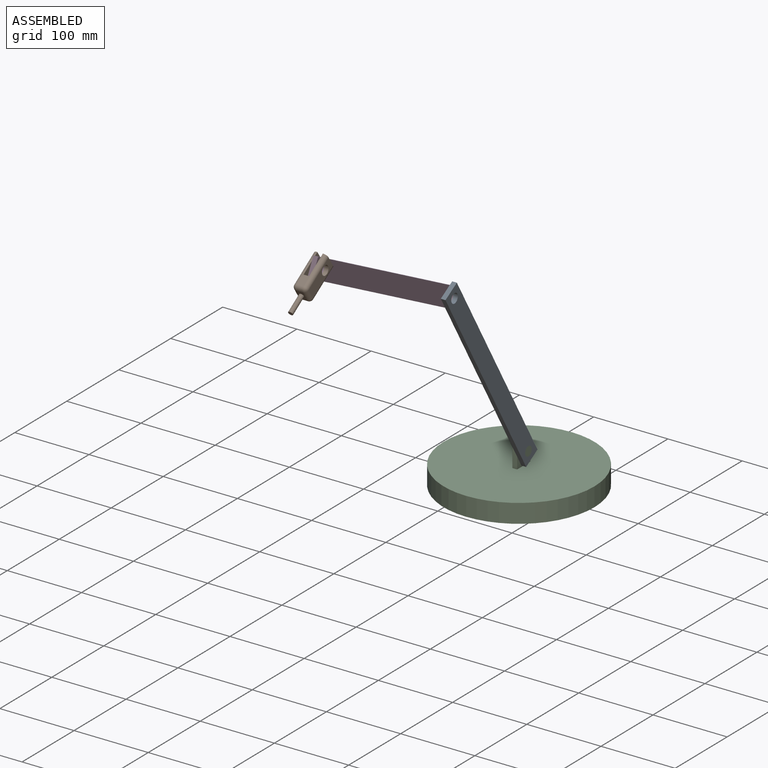
[diagram: assembled view]
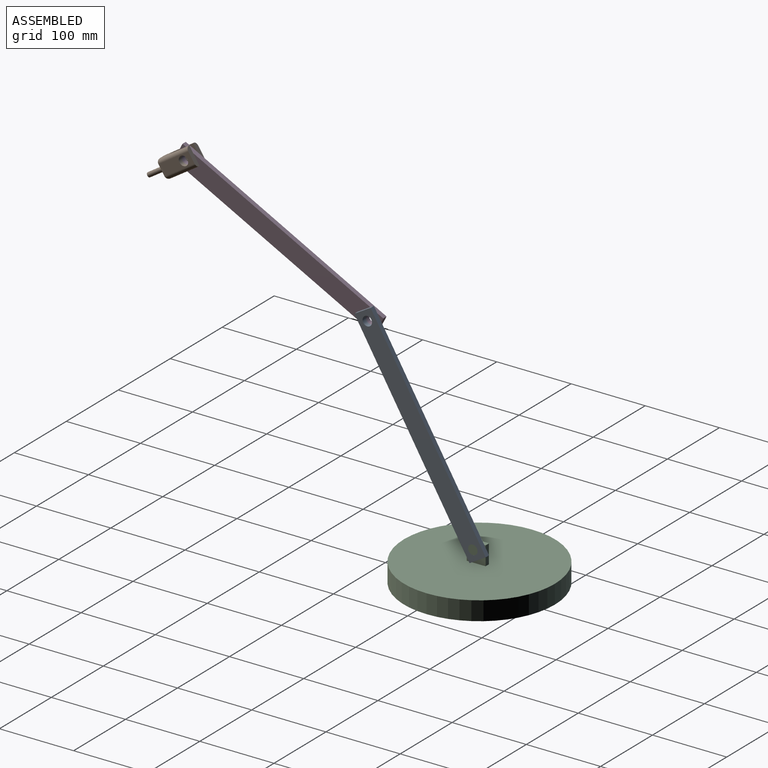
[diagram: assembled view, second angle]
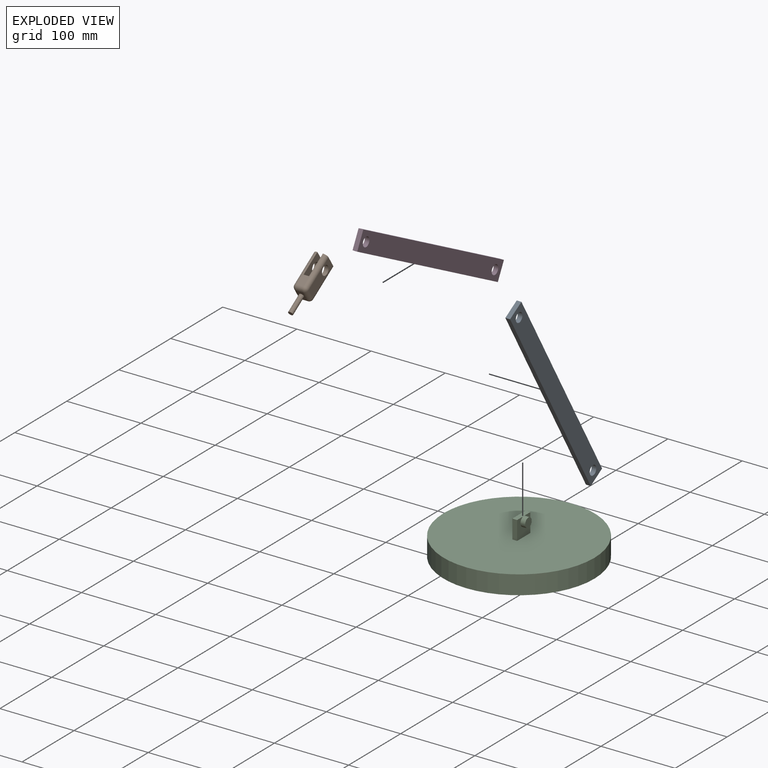
[diagram: exploded view]
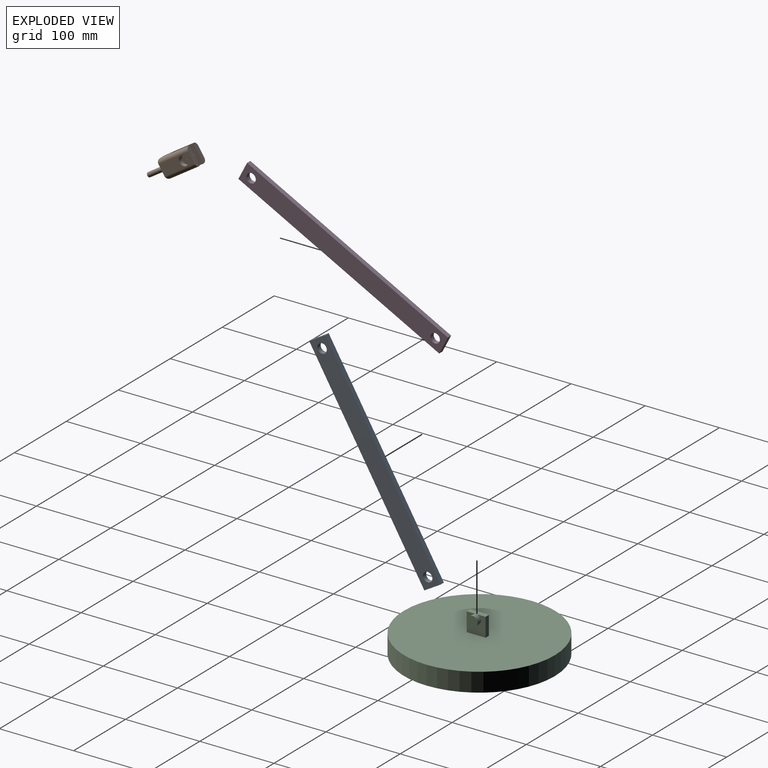
[diagram: exploded view, second angle]
ASSEMBLY  parts=4 mates=3
PART A: 8 faces, bbox 6.4x25.4x304.8 mm
  f0: plane 304.8x6.35mm, normal (0,-1,0), area 1935.5mm2, adj f1,f4,f6,f7
  f1: plane 25.4x6.35mm, normal (0,0,-1), area 161.3mm2, adj f0,f2,f6,f7
  f2: plane 304.8x6.35mm, normal (0,1,0), area 1935.5mm2, adj f1,f4,f6,f7
  f3: cylinder r=6.35mm len=12.7mm, axis (-1,0,0), area 253.4mm2, adj f6,f7
  f4: plane 25.4x6.35mm, normal (0,0,1), area 161.3mm2, adj f0,f2,f6,f7
  f5: cylinder r=6.35mm len=12.7mm, axis (-1,0,0), area 253.4mm2, adj f6,f7
  f6: plane 304.8x25.4mm, normal (1,0,0), area 7488.6mm2, adj f0,f1,f2,f3,f4,f5
  f7: plane 304.8x25.4mm, normal (-1,0,0), area 7488.6mm2, adj f0,f1,f2,f3,f4,f5
PART B: 26 faces, bbox 19.1x25.4x76.2 mm
  f0: plane 25.4x7.37mm, normal (0,0,-1), area 187.1mm2, adj f1,f7,f8,f9
  f1: plane 31.75x25.4mm, normal (1,0,0), area 679.8mm2, adj f0,f2,f8,f9,f11
  f2: plane 25.4x5.84mm, normal (0,0,-1), area 137.3mm2, adj f1,f3,f8,f9,f20,f21
  f3: plane 45.72x15.24mm, normal (-1,0,0), area 570.1mm2, adj f2,f11,f20,f21,f25
  f4: plane 15.24x8.89mm, normal (0,0,1), area 103.8mm2, adj f12,f16,f19,f22,f25
  f5: plane 45.72x15.24mm, normal (1,0,0), area 570.1mm2, adj f6,f10,f14,f15,f16
  f6: plane 25.4x5.84mm, normal (0,0,-1), area 137.3mm2, adj f5,f7,f8,f9,f14,f15
  f7: plane 31.75x25.4mm, normal (-1,0,0), area 679.8mm2, adj f0,f6,f8,f9,f10
  f8: plane 45.72x8.89mm, normal (0,-1,0), area 172.6mm2, adj f0,f1,f2,f6,f7,f14,f19,f20
  f9: plane 45.72x8.89mm, normal (0,1,0), area 172.6mm2, adj f0,f1,f2,f6,f7,f15,f21,f22
  f10: cylinder r=6.35mm len=12.7mm, axis (1,0,0), area 233.1mm2, adj f5,f7
  f11: cylinder r=6.35mm len=12.7mm, axis (1,0,0), area 233.1mm2, adj f1,f3
  f12: cylinder r=3.17mm len=25.4mm, axis (0,0,-1), area 506.7mm2, adj f4,f13
  f13: plane 6.35x6.35mm, normal (0,0,1), area 31.7mm2, adj f12
  f14: cylinder r=5.08mm len=45.72mm, axis (0,0,1), area 364.8mm2, adj f5,f6,f8,f17
  f15: cylinder r=5.08mm len=45.72mm, axis (0,0,-1), area 364.8mm2, adj f5,f6,f9,f18
  f16: cylinder r=5.08mm len=15.24mm, axis (0,1,0), area 121.6mm2, adj f4,f5,f17,f18
  f17: sphere r=5.08mm, area 40.5mm2, adj f14,f16,f19
  f18: sphere r=5.08mm, area 40.5mm2, adj f15,f16,f22
  f19: cylinder r=5.08mm len=8.89mm, axis (-1,0,0), area 70.9mm2, adj f4,f8,f17,f23
  f20: cylinder r=5.08mm len=45.72mm, axis (0,0,-1), area 364.8mm2, adj f2,f3,f8,f23
  f21: cylinder r=5.08mm len=45.72mm, axis (0,0,1), area 364.8mm2, adj f2,f3,f9,f24
  f22: cylinder r=5.08mm len=8.89mm, axis (1,0,0), area 70.9mm2, adj f4,f9,f18,f24
  f23: sphere r=5.08mm, area 40.5mm2, adj f19,f20,f25
  f24: sphere r=5.08mm, area 40.5mm2, adj f21,f22,f25
  f25: cylinder r=5.08mm len=15.24mm, axis (0,-1,0), area 121.6mm2, adj f3,f4,f23,f24
PART C: 10 faces, bbox 203.2x203.2x50.8 mm
  f0: cylinder r=101.6mm len=203.2mm, axis (0,0,-1), area 16214.6mm2, adj f1,f2
  f1: plane 203.2x203.2mm, normal (0,0,1), area 32268mm2, adj f0,f4,f5,f6,f7
  f2: plane 203.2x203.2mm, normal (0,0,-1), area 32429.3mm2, adj f0
  f3: plane 25.4x6.35mm, normal (0,0,1), area 161.3mm2, adj f4,f5,f6,f7
  f4: plane 25.4x25.4mm, normal (1,0,0), area 518.5mm2, adj f1,f3,f5,f7,f8
  f5: plane 25.4x6.35mm, normal (0,-1,0), area 161.3mm2, adj f1,f3,f4,f6
  f6: plane 25.4x25.4mm, normal (-1,0,0), area 645.2mm2, adj f1,f3,f5,f7
  f7: plane 25.4x6.35mm, normal (0,1,0), area 161.3mm2, adj f1,f3,f4,f6
  f8: cylinder r=6.35mm len=12.7mm, axis (-1,0,0), area 253.4mm2, adj f4,f9
  f9: plane 12.7x12.7mm, normal (1,0,0), area 126.7mm2, adj f8
PART D: same geometry as A
PLACE A rot(axis=(1,0,0),30.6deg) t=(-45.16,-42.12,32.16)mm
PLACE B rot(axis=(1,0,0),123.1deg) t=(-52.02,-183.82,616.47)mm
PLACE C t=(-45.16,-64.75,25.96)mm fixed
PLACE D rot(axis=(1,0,0),62.6deg) t=(-51.51,-167.56,290.42)mm
MATE revolute A.f5 <-> C.f8  axis (-1,0,0) through (-38.81,-64.75,70.41)mm
MATE revolute B.f10 <-> D.f3  axis (-1,0,0) through (-38.81,-455.04,439.51)mm
MATE revolute D.f5 <-> A.f3  axis (1,0,0) through (-38.81,-207.01,310.88)mm
